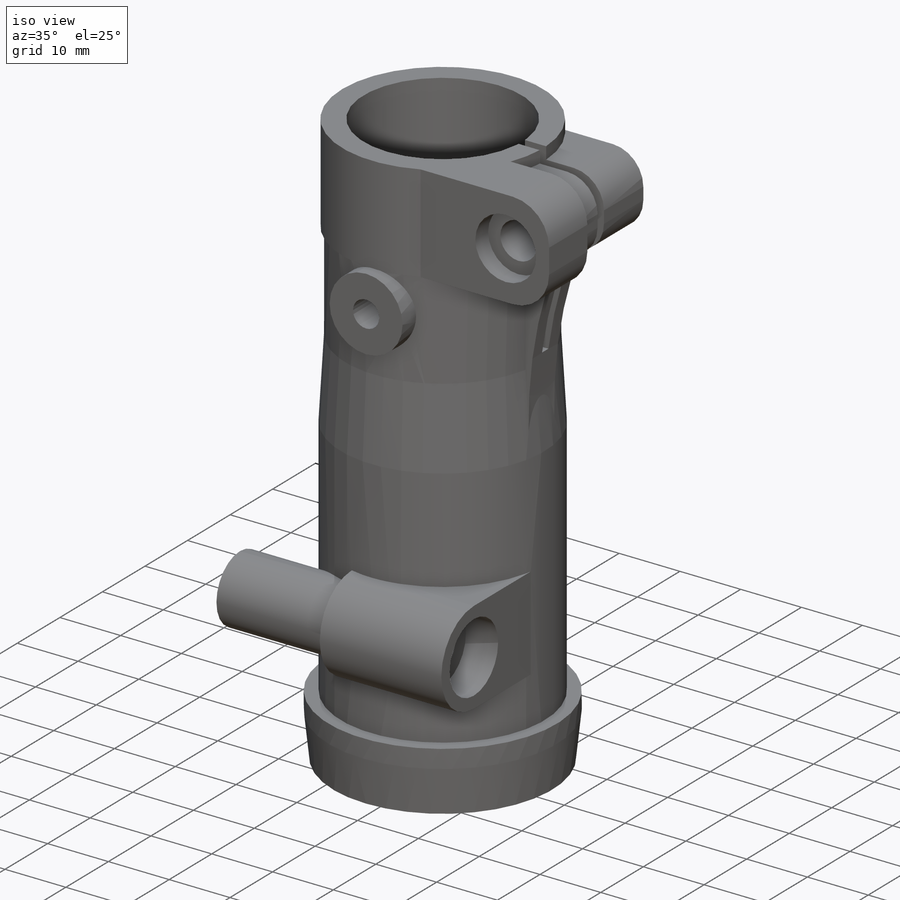
[diagram: iso view]
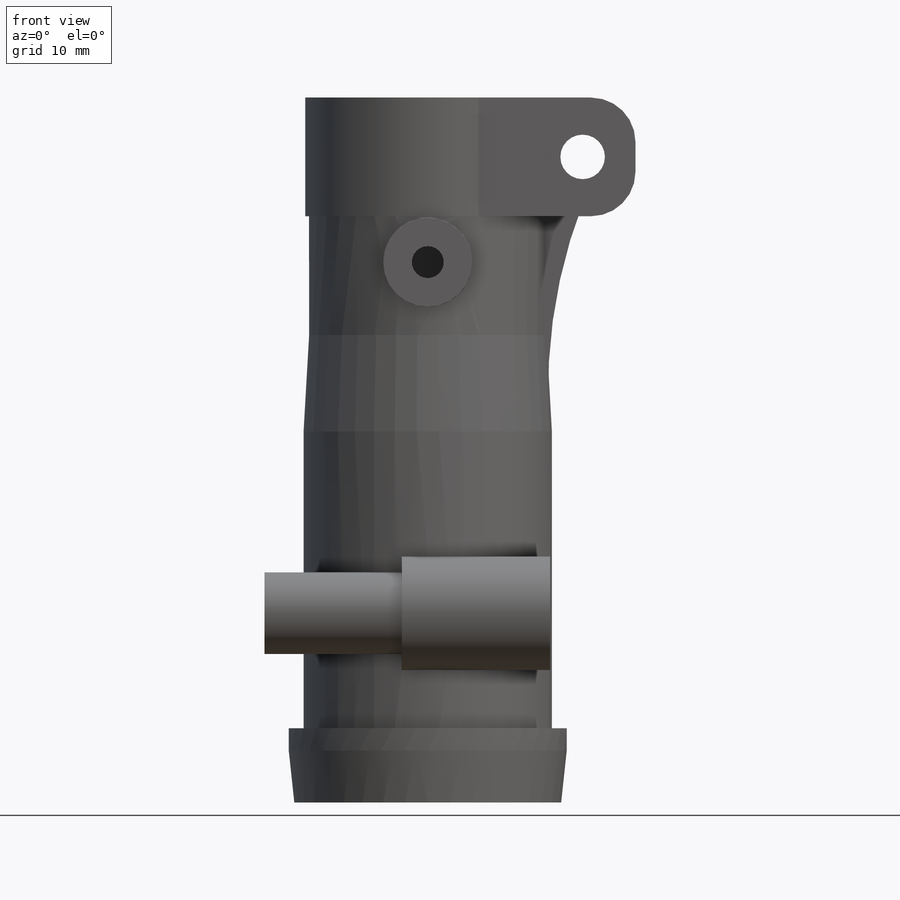
[diagram: front view]
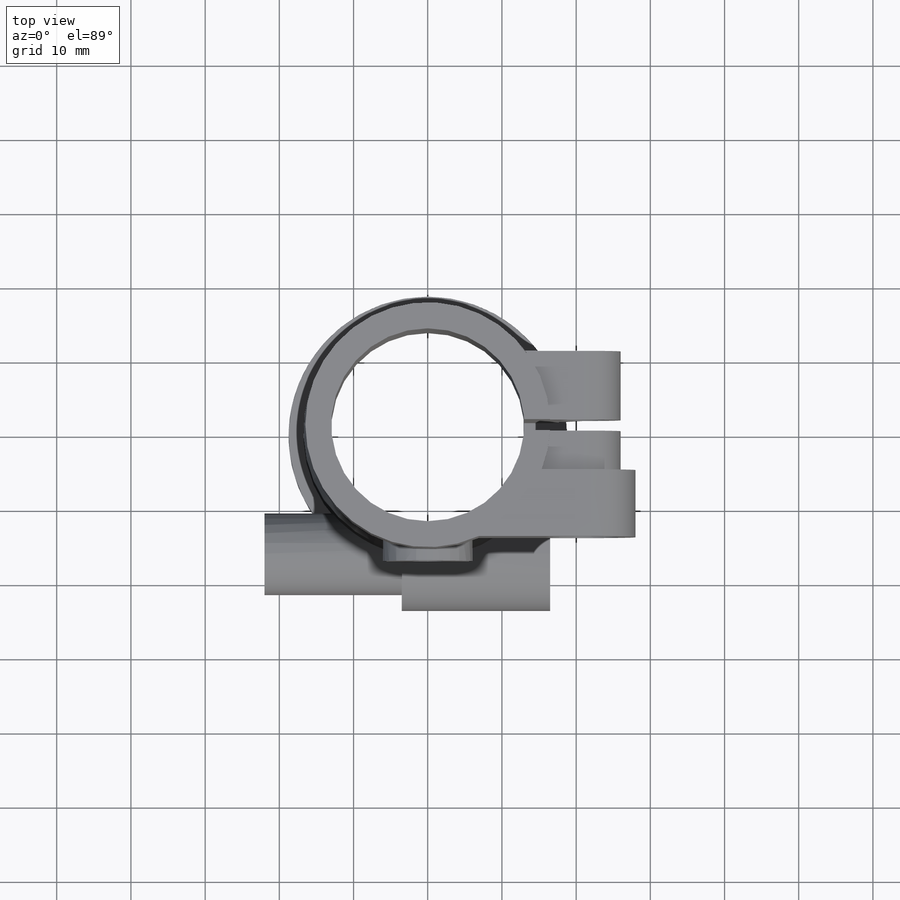
[diagram: top view]
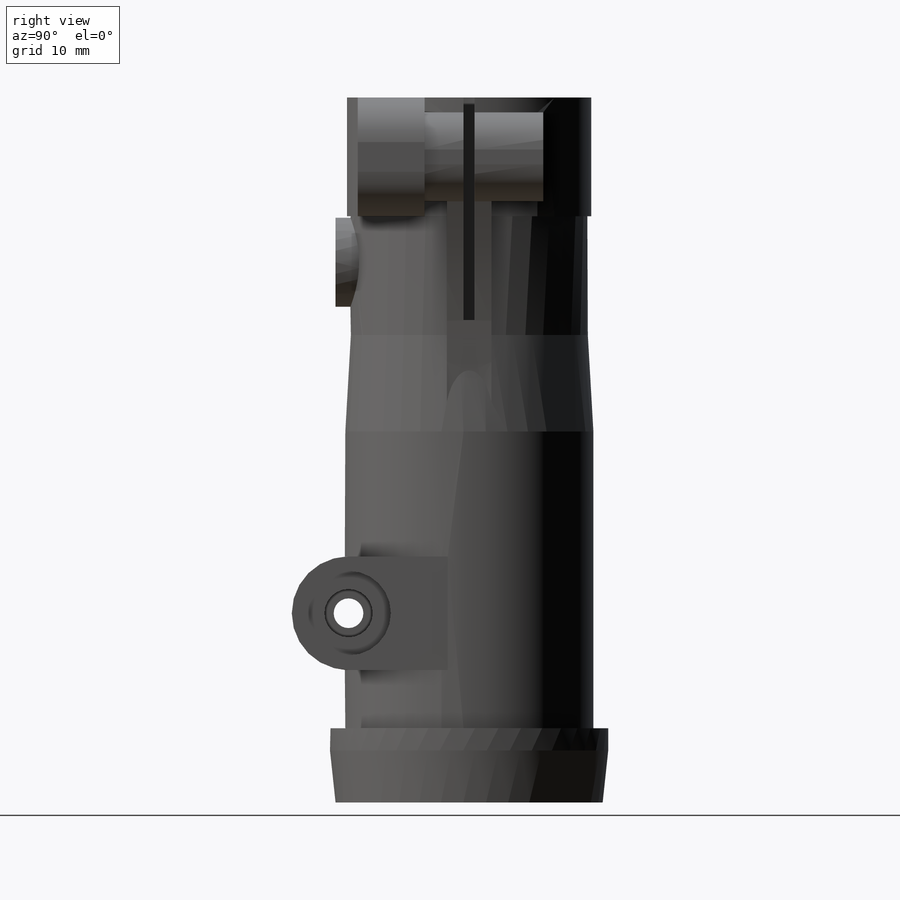
[diagram: right view]
SOLIDWORKS PART (.sldprt)
format: sldprt  version: not decoded by parser v0  size: 487,936 bytes
history: native  units: mm
features: material x16, cut_extrude x8, extrude x7, fillet x2, plane x1, sketch x1, revolve x1 (+16 scaffold rows collapsed)
feature tree (52):
  scaffold x16  (default folders/planes/origin — collapsed)
  material  "材质 <未指定>"
  material  "草图2"
  material  "草图3"
  material  "草图4"
  material  "草图5"
  material  "草图7"
  material  "草图6"
  material  "草图8"
  material  "草图9"
  material  "草图10"
  material  "草图11"
  material  "草图12"
  material  "草图13"
  material  "草图14"
  material  "草图16"
  material  "草图17"
  plane  "前视基准面"
  sketch  "草图1"  dims[c1.D1=95.0mm c1.D2=37.5mm c1.D3=0.5mm c1.D4=33.0mm c1.D5=33.5mm c1.D6=29.0mm c1.D7=26.0mm c1.D8=18.0mm c1.D9=37.5mm c1.D10=10.0mm c1.D11=3.0mm c1.D12=16.0mm c1.D13=18.0mm c1.D14=40.0mm c1.D15=2.5mm c2.D13=16.0mm c2.D3=32.0mm]
  revolve  "旋转1"  Angle=360deg
  extrude  "凸台-拉伸1"  [1 undecoded]
  fillet  "圆角1"  Radius=5mm
  extrude  "凸台-拉伸2"  [1 undecoded]
  fillet  "圆角2"  Radius=6mm
  cut_extrude  "切除-拉伸1"  Depth=3mm
  cut_extrude  "切除-拉伸2"  [1 undecoded]
  extrude  "凸台-拉伸3"  Depth=3mm
  cut_extrude  "切除-拉伸3"  Depth=19mm
  extrude  "凸台-拉伸4"  Depth=16.5mm
  extrude  "凸台-拉伸5"  [1 undecoded]
  extrude  "凸台-拉伸6"  Depth=18.5mm
  cut_extrude  "切除-拉伸4"  [1 undecoded]
  cut_extrude  "切除-拉伸5"  Depth=40.5mm
  cut_extrude  "切除-拉伸6"  Depth=5.3mm
  cut_extrude  "切除-拉伸7"  Depth=18.3mm
  extrude  "凸台-拉伸11"  [1 undecoded]
  cut_extrude  "切除-拉伸8"  [1 undecoded]
decode coverage: 12 of 19 modeling features carry decoded parameters
note: 7 parameter values undecoded
summary: no parameter record found for 7 features
note: suppression state not decoded; provenance and decode notes live in map.json
